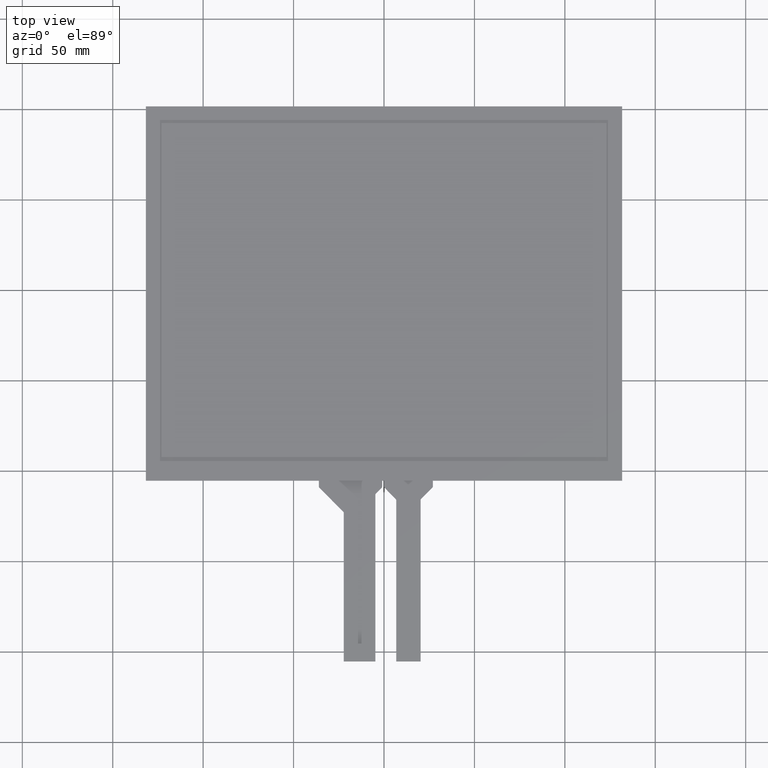
[diagram: clean part render]
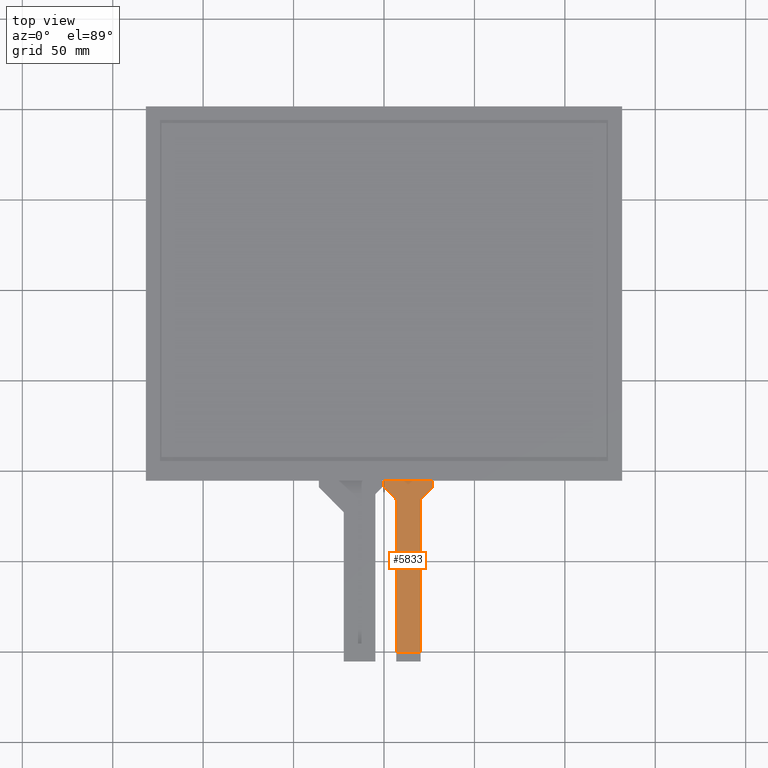
[diagram: same view with one face highlighted and labeled with its STEP entity id]
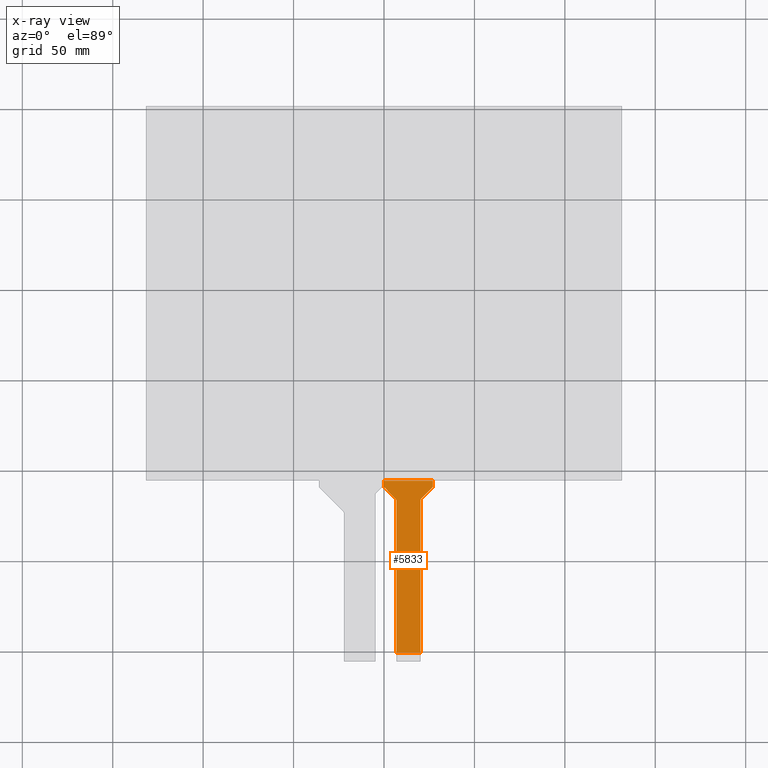
[diagram: x-ray of the same camera — body ghosted, the highlighted face saturated]
A machine part, top view. The second image highlights one B-rep face of the part: STEP entity #5833.
The next image is the same camera in x-ray: the body ghosted, the highlighted face saturated — about 0% of this face is hidden behind the body in this view.
In plain terms, the highlighted planar face has unit normal (0, 0, 1).
Its self-contained STEP definition (entity closure, byte-faithful):
#73=PLANE('',#6151);
#357=FACE_OUTER_BOUND('',#651,.T.);
#651=EDGE_LOOP('',(#4109,#4110,#4111,#4112,#4113,#4114,#4115,#4116,#4117,
#4118,#4119,#4120));
#947=LINE('',#7951,#1787);
#957=LINE('',#7974,#1797);
#958=LINE('',#7977,#1798);
#959=LINE('',#7979,#1799);
#960=LINE('',#7981,#1800);
#961=LINE('',#7985,#1801);
#962=LINE('',#7989,#1802);
#963=LINE('',#7990,#1803);
#1787=VECTOR('',#6473,10.);
#1797=VECTOR('',#6491,10.);
#1798=VECTOR('',#6494,10.);
#1799=VECTOR('',#6495,10.);
#1800=VECTOR('',#6496,10.);
#1801=VECTOR('',#6499,10.);
#1802=VECTOR('',#6502,10.);
#1803=VECTOR('',#6503,10.);
#2625=CIRCLE('',#6144,1.);
#2628=CIRCLE('',#6149,1.);
#2629=CIRCLE('',#6152,1.);
#2630=CIRCLE('',#6153,1.);
#2649=VERTEX_POINT('',#7941);
#2650=VERTEX_POINT('',#7942);
#2653=VERTEX_POINT('',#7950);
#2661=VERTEX_POINT('',#7967);
#2662=VERTEX_POINT('',#7969);
#2663=VERTEX_POINT('',#7976);
#2664=VERTEX_POINT('',#7978);
#2665=VERTEX_POINT('',#7980);
#2666=VERTEX_POINT('',#7982);
#2667=VERTEX_POINT('',#7984);
#2668=VERTEX_POINT('',#7986);
#2669=VERTEX_POINT('',#7988);
#3225=EDGE_CURVE('',#2649,#2650,#2625,.T.);
#3229=EDGE_CURVE('',#2653,#2650,#947,.T.);
#3238=EDGE_CURVE('',#2661,#2662,#2628,.T.);
#3241=EDGE_CURVE('',#2649,#2662,#957,.T.);
#3242=EDGE_CURVE('',#2661,#2663,#958,.T.);
#3243=EDGE_CURVE('',#2664,#2663,#959,.T.);
#3244=EDGE_CURVE('',#2664,#2665,#960,.T.);
#3245=EDGE_CURVE('',#2666,#2665,#2629,.T.);
#3246=EDGE_CURVE('',#2666,#2667,#961,.T.);
#3247=EDGE_CURVE('',#2668,#2667,#2630,.T.);
#3248=EDGE_CURVE('',#2668,#2669,#962,.T.);
#3249=EDGE_CURVE('',#2669,#2653,#963,.T.);
#4109=ORIENTED_EDGE('',*,*,#3238,.F.);
#4110=ORIENTED_EDGE('',*,*,#3242,.T.);
#4111=ORIENTED_EDGE('',*,*,#3243,.F.);
#4112=ORIENTED_EDGE('',*,*,#3244,.T.);
#4113=ORIENTED_EDGE('',*,*,#3245,.F.);
#4114=ORIENTED_EDGE('',*,*,#3246,.T.);
#4115=ORIENTED_EDGE('',*,*,#3247,.F.);
#4116=ORIENTED_EDGE('',*,*,#3248,.T.);
#4117=ORIENTED_EDGE('',*,*,#3249,.T.);
#4118=ORIENTED_EDGE('',*,*,#3229,.T.);
#4119=ORIENTED_EDGE('',*,*,#3225,.F.);
#4120=ORIENTED_EDGE('',*,*,#3241,.T.);
#5833=ADVANCED_FACE('',(#357),#73,.T.);
#6144=AXIS2_PLACEMENT_3D('',#7943,#6465,#6466);
#6149=AXIS2_PLACEMENT_3D('',#7970,#6485,#6486);
#6151=AXIS2_PLACEMENT_3D('',#7975,#6492,#6493);
#6152=AXIS2_PLACEMENT_3D('',#7983,#6497,#6498);
#6153=AXIS2_PLACEMENT_3D('',#7987,#6500,#6501);
#6465=DIRECTION('center_axis',(0.,0.,1.));
#6466=DIRECTION('ref_axis',(-0.923166632761983,0.384400010607313,0.));
#6473=DIRECTION('',(-3.96066184927592E-16,1.,0.));
#6485=DIRECTION('center_axis',(0.,0.,-1.));
#6486=DIRECTION('ref_axis',(0.923166632761984,-0.384400010607311,0.));
#6491=DIRECTION('',(0.709730526852056,0.704473263690187,0.));
#6492=DIRECTION('center_axis',(0.,0.,1.));
#6493=DIRECTION('ref_axis',(1.,0.,0.));
#6494=DIRECTION('',(0.,1.,0.));
#6495=DIRECTION('',(1.,6.74651287276966E-17,0.));
#6496=DIRECTION('',(0.,-1.,0.));
#6497=DIRECTION('center_axis',(0.,0.,-1.));
#6498=DIRECTION('ref_axis',(-0.924589240379761,-0.380965532002539,0.));
#6499=DIRECTION('',(0.704473263690187,-0.709730526852056,0.));
#6500=DIRECTION('center_axis',(0.,0.,1.));
#6501=DIRECTION('ref_axis',(0.92458924037976,0.380965532002541,0.));
#6502=DIRECTION('',(1.23909335726321E-16,-1.,0.));
#6503=DIRECTION('',(1.,0.,0.));
#7941=CARTESIAN_POINT('',(20.5455267363098,-115.356662350626,-0.2));
#7942=CARTESIAN_POINT('',(20.25,-116.066392877478,-0.2));
#7943=CARTESIAN_POINT('Origin',(21.25,-116.066392877478,-0.2));
#7950=CARTESIAN_POINT('',(20.25,-200.35,-0.2));
#7951=CARTESIAN_POINT('',(20.25,-205.35,-0.2));
#7967=CARTESIAN_POINT('',(27.,-108.533607122522,-0.2));
#7969=CARTESIAN_POINT('',(26.7044732636902,-109.243337649374,-0.2));
#7970=CARTESIAN_POINT('Origin',(26.,-108.533607122522,-0.2));
#7974=CARTESIAN_POINT('',(20.25,-115.65,-0.2));
#7975=CARTESIAN_POINT('Origin',(13.5,-155.35,-0.2));
#7976=CARTESIAN_POINT('',(27.,-105.35,-0.2));
#7977=CARTESIAN_POINT('',(27.,-108.95,-0.2));
#7978=CARTESIAN_POINT('',(8.88178419700125E-15,-105.35,-0.2));
#7979=CARTESIAN_POINT('',(72.575,-105.35,-0.2));
#7980=CARTESIAN_POINT('',(8.88178419700125E-15,-108.537962399556,-0.2));
#7981=CARTESIAN_POINT('',(8.88178419700125E-15,-105.35,-0.2));
#7982=CARTESIAN_POINT('',(0.29026947314795,-109.242435663246,-0.2));
#7983=CARTESIAN_POINT('Origin',(1.00000000000001,-108.537962399556,-0.2));
#7984=CARTESIAN_POINT('',(6.45973052685207,-115.457937471082,-0.2));
#7985=CARTESIAN_POINT('',(8.88178419700125E-15,-108.95,-0.2));
#7986=CARTESIAN_POINT('',(6.75000000000002,-116.162410734773,-0.2));
#7987=CARTESIAN_POINT('Origin',(5.75000000000002,-116.162410734773,-0.2));
#7988=CARTESIAN_POINT('',(6.75000000000003,-200.35,-0.2));
#7989=CARTESIAN_POINT('',(6.75000000000002,-115.750373134328,-0.2));
#7990=CARTESIAN_POINT('',(10.125,-200.35,-0.2));